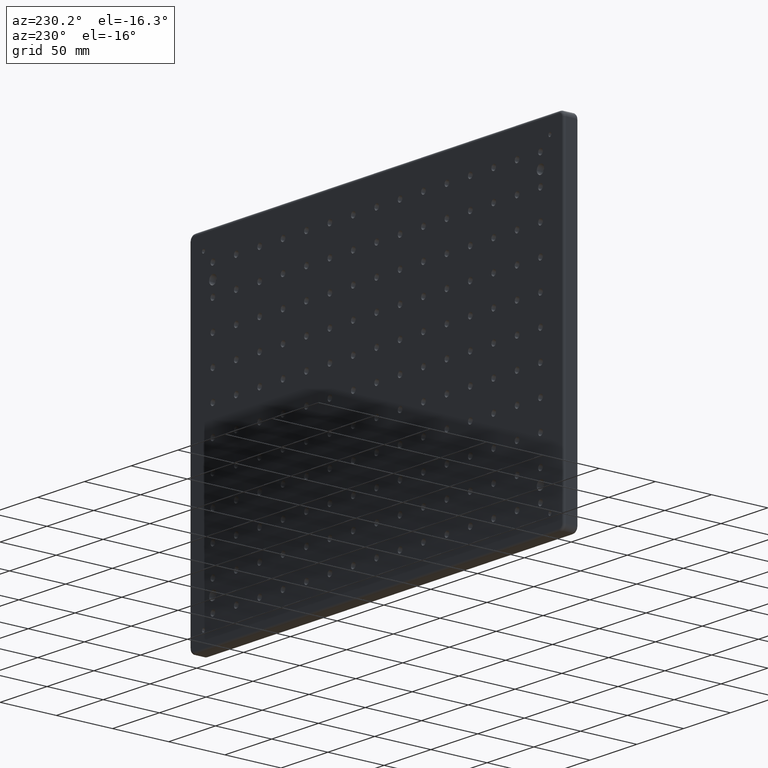
[diagram: clean part render]
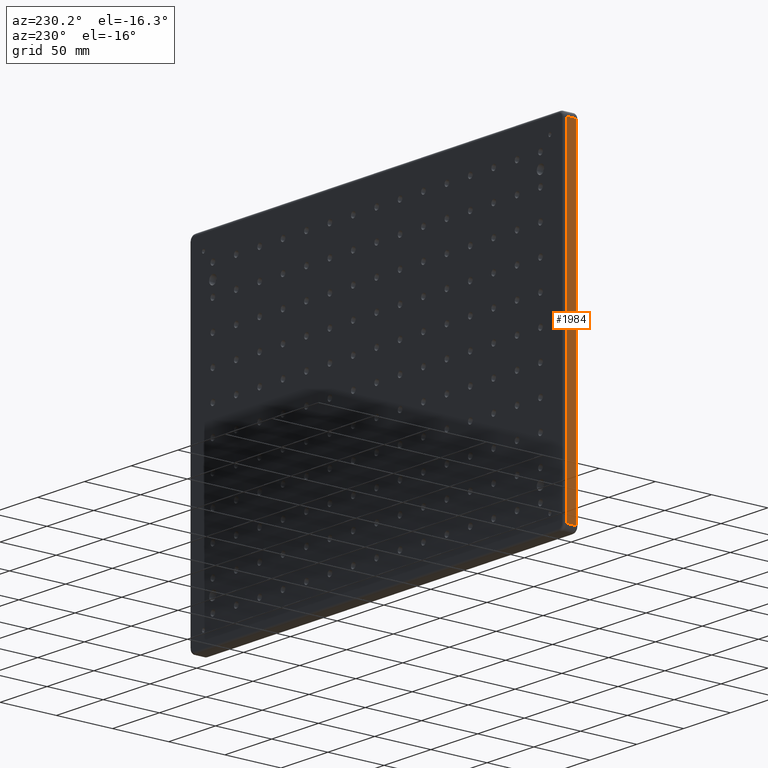
[diagram: same view with one face highlighted and labeled with its STEP entity id]
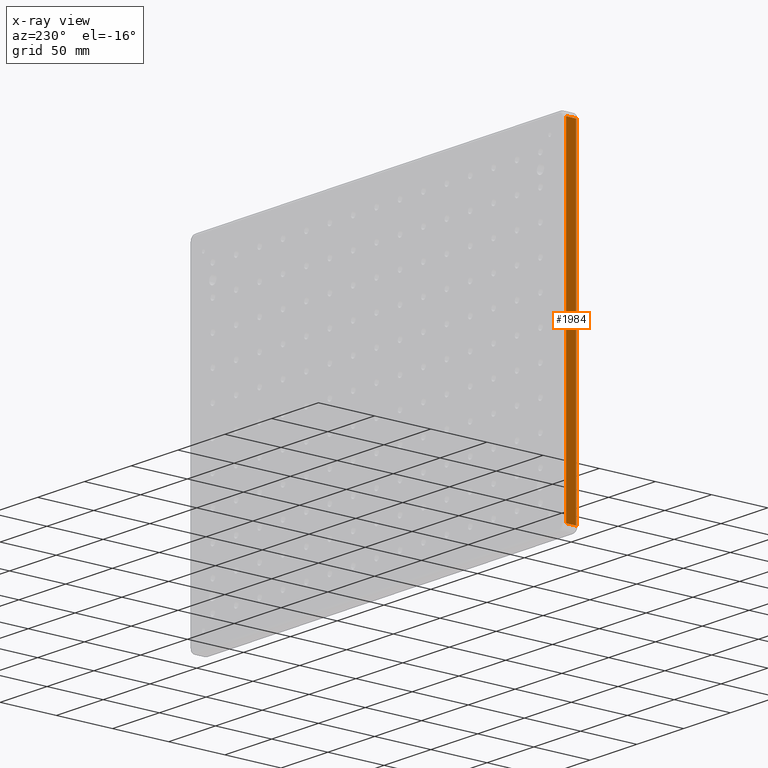
[diagram: x-ray of the same camera — body ghosted, the highlighted face saturated]
A machine part, auxiliary view. The second image highlights one B-rep face of the part: STEP entity #1984.
The next image is the same camera in x-ray: the body ghosted, the highlighted face saturated — about 0% of this face is hidden behind the body in this view.
In plain terms, the highlighted planar face has unit normal (1, -0, 0).
Its self-contained STEP definition (entity closure, byte-faithful):
#1140 = VECTOR ( 'NONE', #11135, 1000.000000000000000 ) ;
#1268 = EDGE_LOOP ( 'NONE', ( #7751, #2408, #11299, #2577 ) ) ;
#1984 = ADVANCED_FACE ( 'NONE', ( #7633 ), #5682, .F. ) ;
#2110 = VERTEX_POINT ( 'NONE', #12480 ) ;
#2408 = ORIENTED_EDGE ( 'NONE', *, *, #7639, .T. ) ;
#2454 = CARTESIAN_POINT ( 'NONE',  ( -200.0000000000000000, 6.500000000000000000, 150.0000000000000000 ) ) ;
#2513 = CARTESIAN_POINT ( 'NONE',  ( -200.0000000000000000, 6.500000000000000000, -144.9999999999999400 ) ) ;
#2577 = ORIENTED_EDGE ( 'NONE', *, *, #6319, .T. ) ;
#2649 = VECTOR ( 'NONE', #12393, 1000.000000000000000 ) ;
#3625 = DIRECTION ( 'NONE',  ( 1.000000000000000000, -0.0000000000000000000, 0.0000000000000000000 ) ) ;
#3668 = CARTESIAN_POINT ( 'NONE',  ( -200.0000000000000000, 4.500000000000000000, 145.0000000000000000 ) ) ;
#3941 = CARTESIAN_POINT ( 'NONE',  ( -200.0000000000000000, -4.500000000000000000, 145.0000000000000000 ) ) ;
#4266 = AXIS2_PLACEMENT_3D ( 'NONE', #2454, #3625, #5775 ) ;
#5278 = VECTOR ( 'NONE', #12993, 1000.000000000000000 ) ;
#5682 = PLANE ( 'NONE',  #4266 ) ;
#5775 = DIRECTION ( 'NONE',  ( 0.0000000000000000000, 0.0000000000000000000, -1.000000000000000000 ) ) ;
#5869 = VECTOR ( 'NONE', #13526, 1000.000000000000000 ) ;
#6319 = EDGE_CURVE ( 'NONE', #10913, #8969, #9619, .T. ) ;
#6480 = LINE ( 'NONE', #2513, #1140 ) ;
#7203 = LINE ( 'NONE', #3941, #5869 ) ;
#7576 = CARTESIAN_POINT ( 'NONE',  ( -200.0000000000000000, 4.500000000000000000, 150.0000000000000000 ) ) ;
#7633 = FACE_OUTER_BOUND ( 'NONE', #1268, .T. ) ;
#7639 = EDGE_CURVE ( 'NONE', #7737, #2110, #7203, .T. ) ;
#7737 = VERTEX_POINT ( 'NONE', #13749 ) ;
#7751 = ORIENTED_EDGE ( 'NONE', *, *, #10432, .T. ) ;
#8969 = VERTEX_POINT ( 'NONE', #9189 ) ;
#9189 = CARTESIAN_POINT ( 'NONE',  ( -200.0000000000000000, 4.500000000000000000, -144.9999999999999400 ) ) ;
#9193 = LINE ( 'NONE', #11365, #2649 ) ;
#9619 = LINE ( 'NONE', #7576, #5278 ) ;
#9955 = EDGE_CURVE ( 'NONE', #2110, #10913, #9193, .T. ) ;
#10432 = EDGE_CURVE ( 'NONE', #8969, #7737, #6480, .T. ) ;
#10913 = VERTEX_POINT ( 'NONE', #3668 ) ;
#11135 = DIRECTION ( 'NONE',  ( -0.0000000000000000000, -1.000000000000000000, 0.0000000000000000000 ) ) ;
#11299 = ORIENTED_EDGE ( 'NONE', *, *, #9955, .T. ) ;
#11365 = CARTESIAN_POINT ( 'NONE',  ( -200.0000000000000000, 6.500000000000000000, 145.0000000000000000 ) ) ;
#12393 = DIRECTION ( 'NONE',  ( 0.0000000000000000000, 1.000000000000000000, -0.0000000000000000000 ) ) ;
#12480 = CARTESIAN_POINT ( 'NONE',  ( -200.0000000000000000, -4.500000000000000000, 145.0000000000000000 ) ) ;
#12993 = DIRECTION ( 'NONE',  ( -0.0000000000000000000, -0.0000000000000000000, -1.000000000000000000 ) ) ;
#13526 = DIRECTION ( 'NONE',  ( -0.0000000000000000000, 0.0000000000000000000, 1.000000000000000000 ) ) ;
#13749 = CARTESIAN_POINT ( 'NONE',  ( -200.0000000000000000, -4.500000000000000000, -144.9999999999999400 ) ) ;